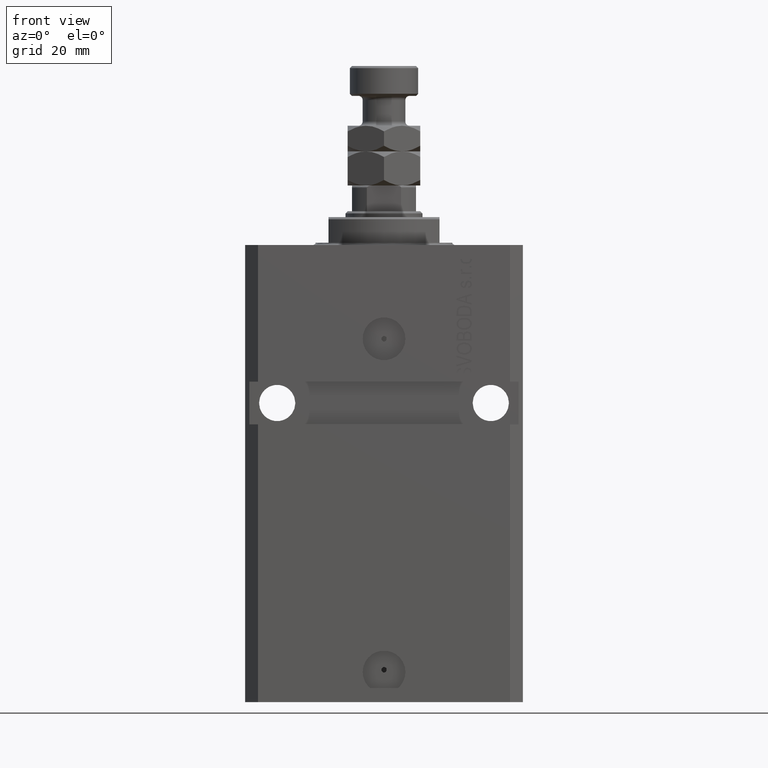
[diagram: clean part render]
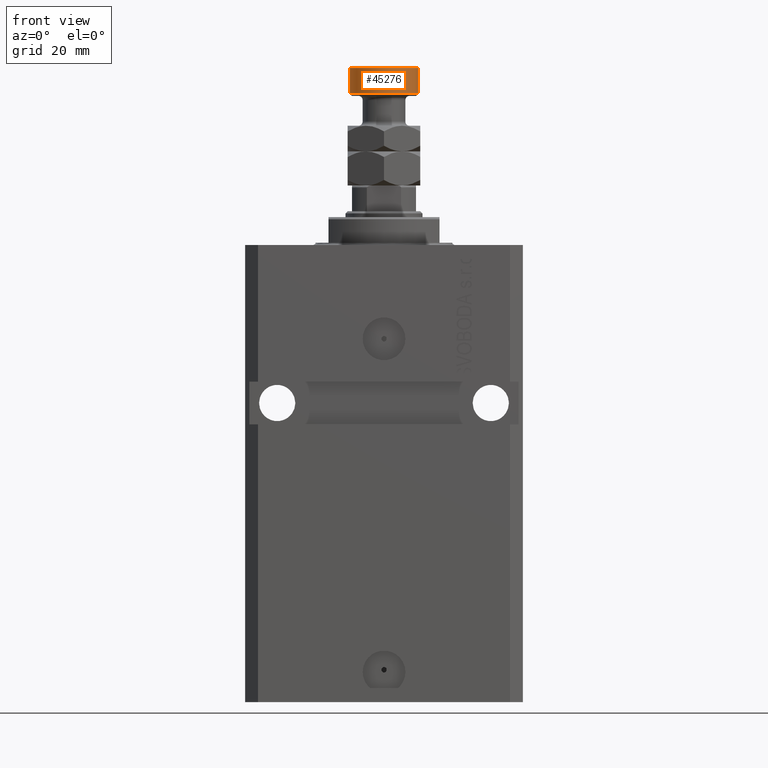
[diagram: same view with one face highlighted and labeled with its STEP entity id]
A machine part, front view. The second image highlights one B-rep face of the part: STEP entity #45276.
In plain terms, the highlighted cylindrical surface (edge-blend (fillet) strip) has radius 8 mm, axis along (-0, -0, -1).
Its self-contained STEP definition (entity closure, byte-faithful):
#85 = EDGE_CURVE ( 'NONE', #6848, #25763, #3738, .T. ) ;
#738 = CIRCLE ( 'NONE', #23872, 8.000000000000000000 ) ;
#1667 = DIRECTION ( 'NONE',  ( -0.000000000000000000, -0.000000000000000000, 1.000000000000000000 ) ) ;
#3067 = EDGE_LOOP ( 'NONE', ( #22789, #24503, #17150, #23358 ) ) ;
#3738 = LINE ( 'NONE', #7755, #46619 ) ;
#4924 = VERTEX_POINT ( 'NONE', #14275 ) ;
#6848 = VERTEX_POINT ( 'NONE', #23633 ) ;
#7581 = DIRECTION ( 'NONE',  ( -1.000000000000000000, 0.000000000000000000, 0.000000000000000000 ) ) ;
#7755 = CARTESIAN_POINT ( 'NONE',  ( -8.000000000000000000, 0.000000000000000000, 28.00000000000000000 ) ) ;
#8322 = CARTESIAN_POINT ( 'NONE',  ( 0.000000000000000000, 0.000000000000000000, 27.50000000000000000 ) ) ;
#9010 = EDGE_CURVE ( 'NONE', #25763, #4924, #18010, .T. ) ;
#14275 = CARTESIAN_POINT ( 'NONE',  ( 8.000000000000000000, 9.797174393178825657E-16, 21.50000000000000711 ) ) ;
#15065 = DIRECTION ( 'NONE',  ( -0.000000000000000000, -0.000000000000000000, -1.000000000000000000 ) ) ;
#15860 = DIRECTION ( 'NONE',  ( -0.000000000000000000, -0.000000000000000000, -1.000000000000000000 ) ) ;
#16927 = DIRECTION ( 'NONE',  ( 1.000000000000000000, 0.000000000000000000, 0.000000000000000000 ) ) ;
#17150 = ORIENTED_EDGE ( 'NONE', *, *, #85, .T. ) ;
#17414 = CARTESIAN_POINT ( 'NONE',  ( 0.000000000000000000, 0.000000000000000000, 21.50000000000000711 ) ) ;
#18010 = CIRCLE ( 'NONE', #47475, 8.000000000000000000 ) ;
#19867 = VECTOR ( 'NONE', #15860, 1000.000000000000000 ) ;
#22789 = ORIENTED_EDGE ( 'NONE', *, *, #37057, .F. ) ;
#22975 = DIRECTION ( 'NONE',  ( -0.000000000000000000, -0.000000000000000000, -1.000000000000000000 ) ) ;
#23358 = ORIENTED_EDGE ( 'NONE', *, *, #9010, .T. ) ;
#23535 = DIRECTION ( 'NONE',  ( 1.000000000000000000, 0.000000000000000000, 0.000000000000000000 ) ) ;
#23633 = CARTESIAN_POINT ( 'NONE',  ( -8.000000000000000000, 0.000000000000000000, 27.50000000000000000 ) ) ;
#23872 = AXIS2_PLACEMENT_3D ( 'NONE', #8322, #45250, #23535 ) ;
#24503 = ORIENTED_EDGE ( 'NONE', *, *, #38191, .T. ) ;
#25763 = VERTEX_POINT ( 'NONE', #37220 ) ;
#30382 = AXIS2_PLACEMENT_3D ( 'NONE', #49221, #15065, #7581 ) ;
#34025 = CYLINDRICAL_SURFACE ( 'NONE', #30382, 8.000000000000000000 ) ;
#37057 = EDGE_CURVE ( 'NONE', #47664, #4924, #38069, .T. ) ;
#37220 = CARTESIAN_POINT ( 'NONE',  ( -8.000000000000000000, 0.000000000000000000, 21.50000000000000711 ) ) ;
#37821 = CARTESIAN_POINT ( 'NONE',  ( 8.000000000000000000, 9.797174393178825657E-16, 28.00000000000000000 ) ) ;
#38069 = LINE ( 'NONE', #37821, #19867 ) ;
#38191 = EDGE_CURVE ( 'NONE', #47664, #6848, #738, .T. ) ;
#41756 = FACE_OUTER_BOUND ( 'NONE', #3067, .T. ) ;
#45250 = DIRECTION ( 'NONE',  ( 0.000000000000000000, 0.000000000000000000, -1.000000000000000000 ) ) ;
#45276 = ADVANCED_FACE ( 'NONE', ( #41756 ), #34025, .T. ) ;
#46619 = VECTOR ( 'NONE', #22975, 1000.000000000000000 ) ;
#47475 = AXIS2_PLACEMENT_3D ( 'NONE', #17414, #1667, #16927 ) ;
#47664 = VERTEX_POINT ( 'NONE', #48698 ) ;
#48698 = CARTESIAN_POINT ( 'NONE',  ( 8.000000000000000000, 9.797174393178825657E-16, 27.50000000000000000 ) ) ;
#49221 = CARTESIAN_POINT ( 'NONE',  ( 0.000000000000000000, 0.000000000000000000, 28.00000000000000000 ) ) ;